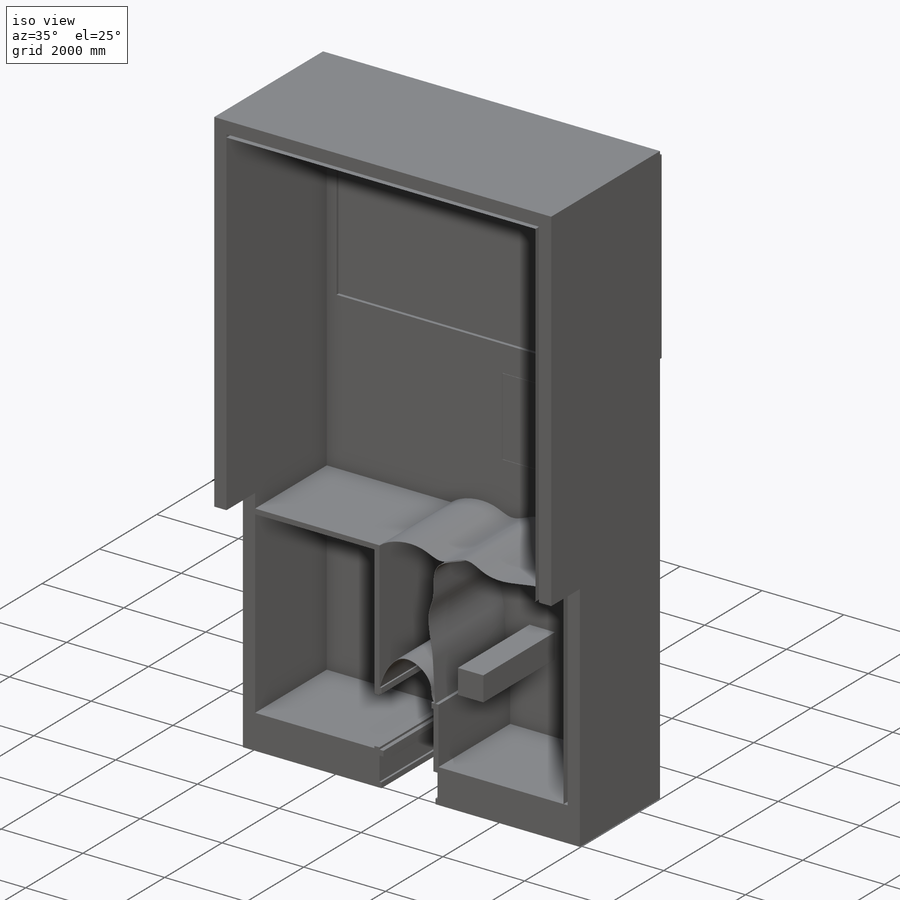
[diagram: iso view]
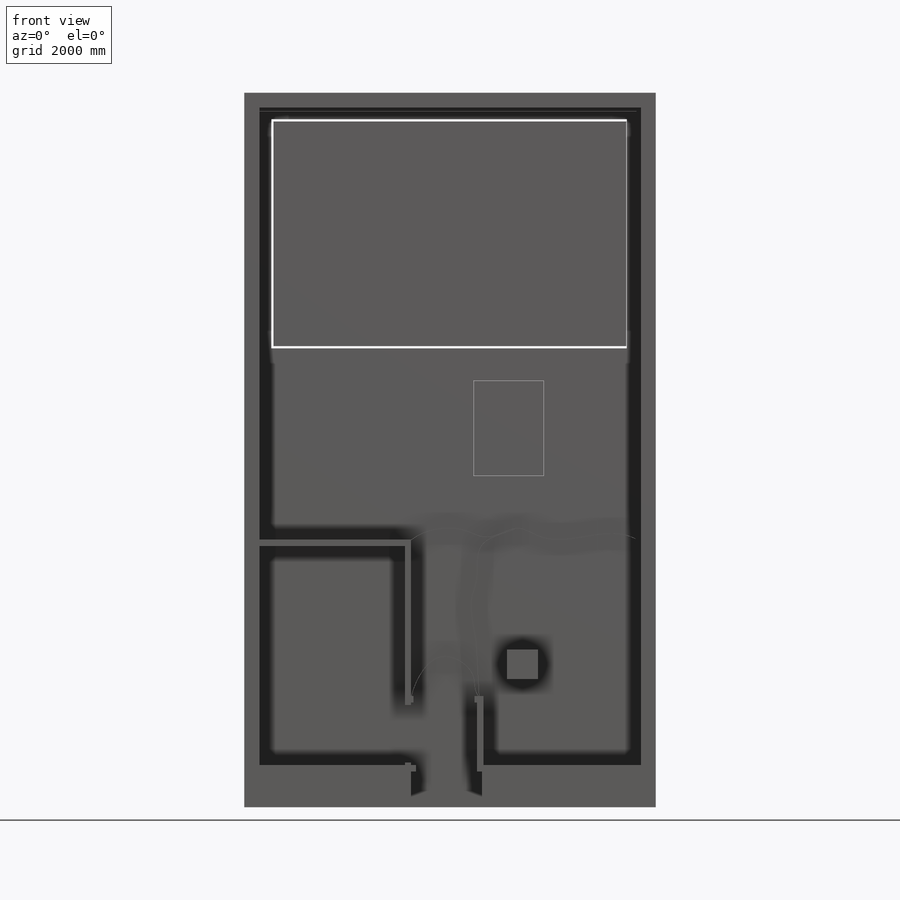
[diagram: front view]
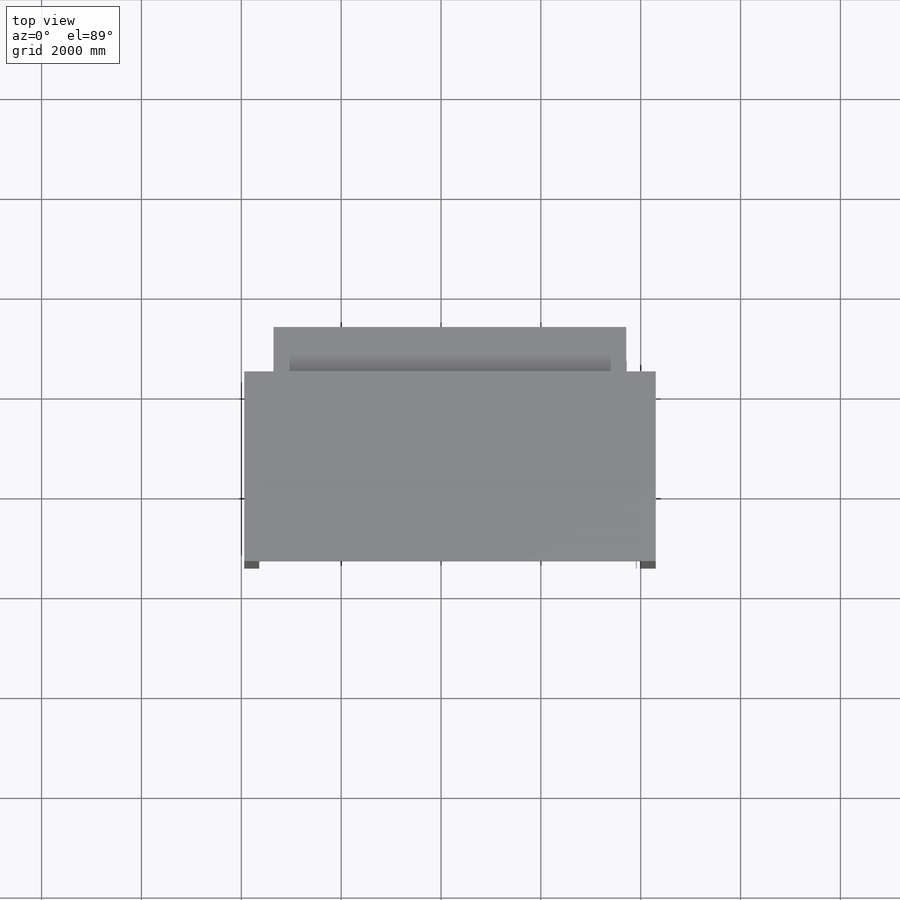
[diagram: top view]
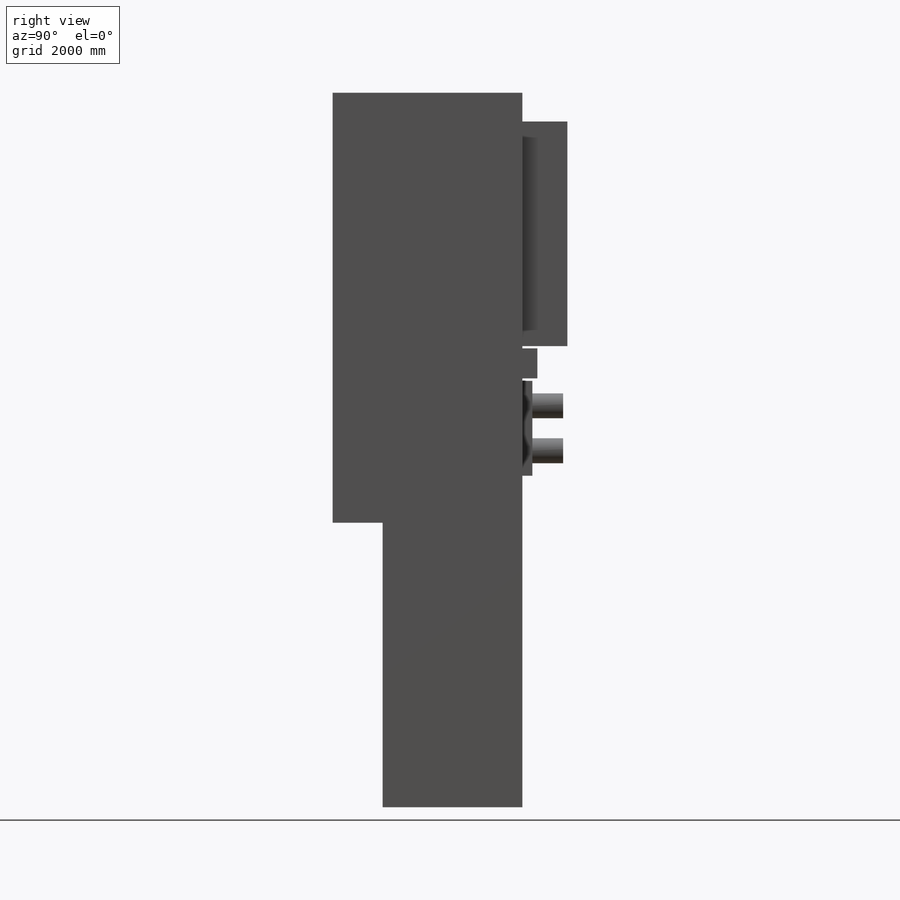
[diagram: right view]
SOLIDWORKS PART (.sldprt)
format: sldprt  version: not decoded by parser v0  size: 795,648 bytes
history: native  units: mm
features: sketch x15, extrude x8, cut_extrude x6, material x1 (+12 scaffold rows collapsed)
feature tree (42):
  scaffold x12  (default folders/planes/origin — collapsed)
  material  "Material <not specified>"
  sketch  "Sketch1"  dims[c1.D1=7640.0mm c1.D2=13170.0mm c1.D3=4600.0mm c1.D4=4600.0mm c1.D5=3270.0mm c1.D6=2830.0mm c1.D7=300.0mm c1.D8=250.0mm c1.D9=300.0mm c1.D10=840.0mm c1.D11=50.0mm c1.D12=125.0mm c1.D13=4600.0mm c2.D3=125.0mm c2.D14=~3552.273595mm c2.D15=~3859.677664mm c3.D14=~3414.911085mm c3.D15=~3411.26515mm c4.D14=2000.0mm c4.250=250.0mm c4.D15=250.0mm c4.D16=3500.0mm c4.D17=250.0mm c4.D8=1720.0mm c5.D14=2060.0mm c5.D15=600.0mm c5.D16=620.0mm c5.D17=300.0mm c5.D11=50.0mm c6.D11=90.0deg c7.D11=1600.0mm c7.D13=125.0mm c7.D18=1540.0mm c7.D5=1400.0mm c8.D11=1200.0mm c8.D18=3280.0mm c8.D19=75.0mm c8.D20=130.0mm c8.D21=3140.0mm c8.D22=75.0mm c8.D23=130.0mm c8.D24=130.0mm c9.D21=3140.0mm c9.D24=1220.0mm c9.D25=1370.0mm c9.D19=1420.0mm c9.D22=100.0mm c9.D6=300.0mm c9.D18=3280.0mm c10.D25=2705.0mm c10.D5=2705.0mm c10.D12=125.0mm c11.D25=710.0mm c11.D26=710.0mm c12.D25=12.0mm c12.D27=~298.50061mm c13.D25=~105.117552mm c13.D27=125.0mm c14.D25=50.0mm c14.D27=1200.0mm c14.D28=50.0mm c14.D29=130.0mm c14.D30=50.0mm c14.D11=125.0mm c14.D12=100.0mm c15.D11=125.0mm c15.D12=50.0mm c15.D4=4390.0mm c15.D5=~91.897922mm c15.D31=~50.489942mm c16.D5=130.0mm c16.D31=50.0mm c16.D32=130.0mm c16.D33=100.0mm c17.D32=50.0mm c17.D33=130.0mm c17.D12=1220.0mm c17.D34=130.0mm c17.D27=~55.388952mm c17.D35=130.0mm c18.D27=50.0mm c18.D35=1150.0mm]
  extrude  "Boss-Extrude1"  Depth=3500mm
  sketch  "Sketch2"
  extrude  "Boss-Extrude2"  Depth=300mm
  sketch  "Sketch3"  dims[c1.D1=240.0mm c1.D2=100.0mm c1.D3=~5126.296825mm c2.D2=45.0mm c2.D3=45.0mm c2.D4=10.0mm c2.D5=50.0mm c2.D6=45.0mm c2.D7=230.0mm c2.D8=4550.0mm c2.D9=7600.0mm c3.D8=4500.0mm c3.D5=7065.0mm c3.D9=301.5mm c3.D1=280.0mm c4.D9=240.0mm]
  cut_extrude  "Cut-Extrude1"  [1 undecoded]
  sketch  "Sketch4"
  cut_extrude  "Cut-Extrude2"  [1 undecoded]
  sketch  "Sketch5"  dims[D1=2800.0mm D2=5700.0mm]
  cut_extrude  "Cut-Extrude3"  [1 undecoded]
  sketch  "Sketch10"  dims[D1=85.0mm D2=100.0mm D3=75.0mm D5=2.0mm D6=2.0mm D7=2.0mm D8=2.0mm D9=~0.106191mm D4=0.0mm]
  extrude  "GEVES"  [1 undecoded]
  sketch  "Sketch6"  dims[D1=0.0mm D5=10.0mm D6=1.0mm D7=5.0mm]
  sketch  "Sketch7"
  extrude  "Boss-Extrude3"  Depth=900mm
  sketch  "Sketch8"  dims[D1=600.0mm]
  extrude  "Boss-Extrude4"  Depth=300mm
  sketch  "Sketch9"
  extrude  "Boss-Extrude5"  Depth=10mm
  sketch  "Sketch11"  dims[D1=~4600.067977mm D2=1000.0mm]
  cut_extrude  "Cut-Extrude4"  Depth=500mm
  sketch  "Sketch12"  dims[c1.D1=~2026.498712mm c1.D2=~3243.80523mm c2.D1=1400.0mm c2.D2=1900.0mm c2.D3=1945.0mm c2.D4=50.0mm]
  extrude  "Boss-Extrude8"  Depth=200mm
  sketch  "Sketch13"  dims[c1.D1=~1929.253458mm c1.D2=~1436.678107mm c2.D1=~2007.244555mm c2.D2=~1502.35482mm c3.D1=5.0mm c3.D2=5.0mm c3.D3=5.0mm c3.D4=1410.0mm c4.D2=5.0mm c4.D3=5.0mm c4.D4=5.0mm]
  cut_extrude  "Cut-Extrude5"  [1 undecoded]
  sketch  "Sketch14"  dims[c1.D1=500.0mm c1.D2=500.0mm c1.D3=500.0mm c1.D4=500.0mm c2.D3=500.0mm c2.D12=500.0mm c2.D4=500.0mm c2.D2=500.0mm c3.D12=500.0mm c3.D4=500.0mm c3.D5=500.0mm c3.D6=250.0mm c3.D7=500.0mm c3.D8=250.0mm c3.D9=500.0mm c3.D10=500.0mm c3.D11=250.0mm c3.D13=250.0mm]
  extrude  "Boss-Extrude9"  Depth=617mm
  sketch  "Sketch15"  dims[c1.D1=~841.886672mm c1.D2=2500.0mm c2.D1=1200.0mm]
  cut_extrude  "Cut-Extrude6"  Depth=337mm
decode coverage: 20 of 29 modeling features carry decoded parameters
note: ~ marks probable driven/reference dimensions
note: 5 parameter values undecoded
summary: no parameter record found for 5 features
note: suppression state not decoded; provenance and decode notes live in map.json
